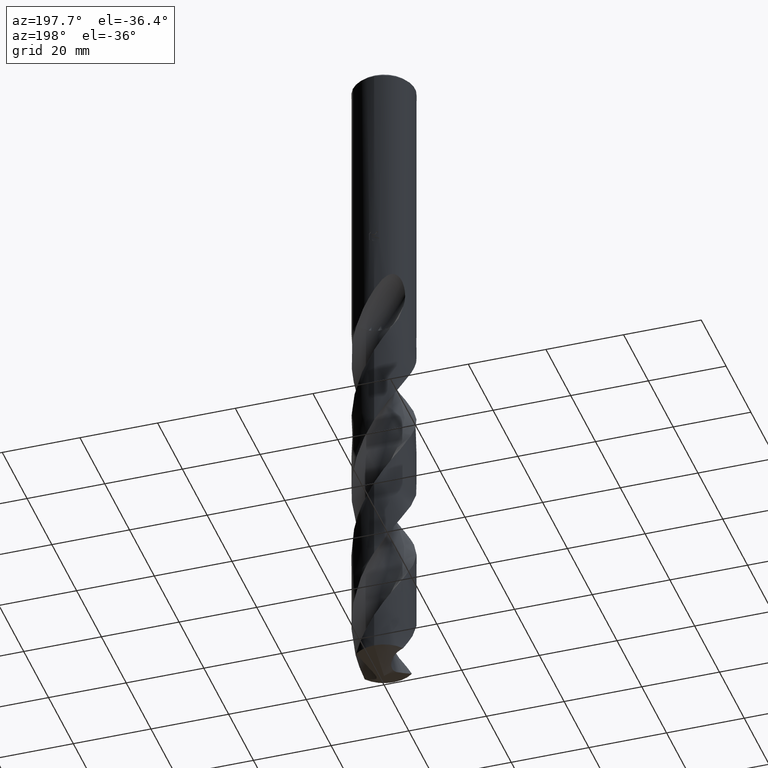
[diagram: clean part render]
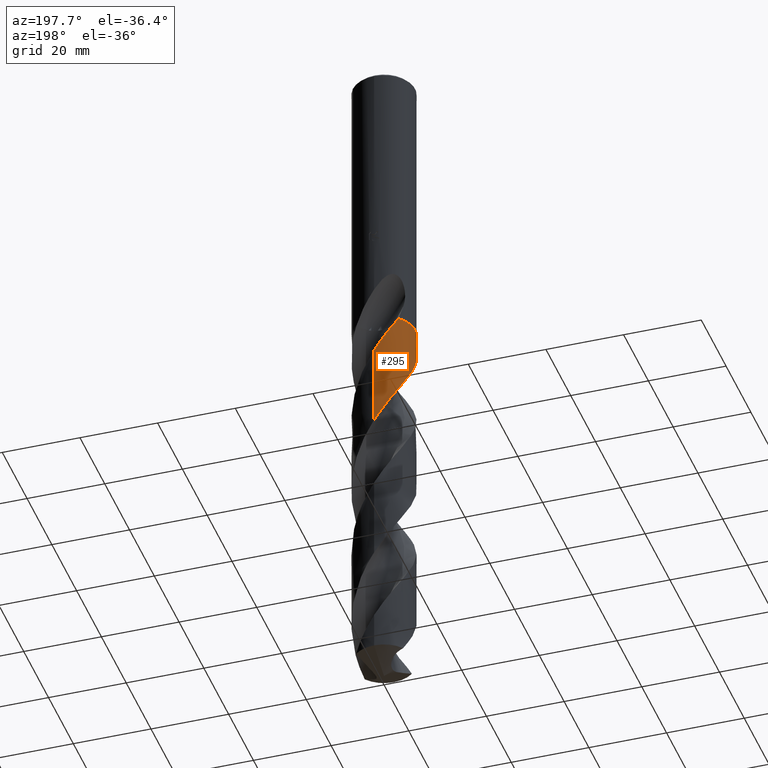
[diagram: same view with one face highlighted and labeled with its STEP entity id]
A machine part, auxiliary view. The second image highlights one B-rep face of the part: STEP entity #295.
In plain terms, the highlighted conical surface has half-angle 0 deg.
Its self-contained STEP definition (entity closure, byte-faithful):
#295=ADVANCED_FACE('',(#776),#777,.T.);
#305=EDGE_CURVE('',#623,#639,#787,.T.);
#317=EDGE_CURVE('',#447,#501,#799,.T.);
#347=VERTEX_POINT('',#831);
#405=VERTEX_POINT('',#893);
#447=VERTEX_POINT('',#941);
#467=EDGE_CURVE('',#639,#347,#962,.T.);
#501=VERTEX_POINT('',#1003);
#521=EDGE_CURVE('',#405,#447,#1024,.T.);
#623=VERTEX_POINT('',#1134);
#639=VERTEX_POINT('',#1152);
#669=EDGE_CURVE('',#501,#623,#1183,.T.);
#673=EDGE_CURVE('',#347,#405,#1187,.T.);
#776=FACE_OUTER_BOUND('',#2792,.T.);
#777=CONICAL_SURFACE('',#2793,7.99995,1.00030470546688E-006);
#787=B_SPLINE_CURVE_WITH_KNOTS('',3,(#2986,#2987,#2988,#2989),.UNSPECIFIED.,.F.,.F.,(4,4),(0.0,0.00532658321904799),.UNSPECIFIED.);
#799=B_SPLINE_CURVE_WITH_KNOTS('',3,(#3093,#3094,#3095,#3096),.UNSPECIFIED.,.F.,.F.,(4,4),(0.0,0.00587111163574686),.UNSPECIFIED.);
#831=CARTESIAN_POINT('',(-2.27333960984461E-012,7.99990991775455,-84.2147334644875));
#893=CARTESIAN_POINT('',(-9.81690854325312E-015,7.99993122110913,-105.511598808039));
#941=CARTESIAN_POINT('',(-5.09767772697037,-6.16539389511924,-74.305));
#962=B_SPLINE_CURVE_WITH_KNOTS('',3,(#4743,#4744,#4745,#4746,#4747,#4748,#4749,#4750,#4751,#4752,#4753,#4754,#4755,#4756,#4757,#4758,#4759,#4760,#4761,#4762,#4763,#4764,#4765,#4766,#4767,#4768,#4769,#4770,#4771,#4772,#4773,#4774,#4775,#4776,#4777,#4778,#4779,#4780,#4781,#4782,#4783,#4784,#4785,#4786,#4787,#4788,#4789,#4790,#4791,#4792,#4793,#4794,#4795,#4796,#4797,#4798,#4799,#4800,#4801,#4802,#4803,#4804,#4805,#4806,#4807,#4808,#4809,#4810,#4811,#4812,#4813,#4814,#4815,#4816,#4817,#4818,#4819,#4820,#4821,#4822,#4823,#4824,#4825,#4826,#4827,#4828,#4829,#4830,#4831,#4832,#4833,#4834,#4835,#4836,#4837,#4838,#4839,#4840,#4841,#4842,#4843,#4844,#4845,#4846,#4847,#4848,#4849,#4850,#4851,#4852,#4853,#4854,#4855,#4856,#4857,#4858,#4859,#4860,#4861,#4862,#4863,#4864,#4865,#4866,#4867,#4868,#4869,#4870,#4871,#4872,#4873,#4874,#4875,#4876,#4877,#4878,#4879,#4880,#4881,#4882,#4883,#4884,#4885,#4886,#4887,#4888),.UNSPECIFIED.,.F.,.F.,(4,2,2,2,2,2,2,2,2,2,2,2,2,2,2,2,2,2,2,2,2,2,2,2,2,2,2,2,2,2,2,2,2,2,2,2,2,2,2,2,2,2,2,2,2,2,2,2,2,2,2,2,2,2,2,2,2,2,2,2,2,2,2,2,2,2,2,2,2,2,2,2,4),(0.0,0.396364840597834,1.68892523961366,2.00397487602575,2.1742425136631,2.30588411094604,2.47757412938631,2.78553549143349,2.98803413635352,3.32603768513197,4.35719738007073,4.93410555683124,5.50924579318835,6.11947961004546,9.23315664726103,9.65617977478687,13.7257575628751,16.4285248284193,17.789595314988,19.1452468522162,21.5964048866649,22.9475144522274,25.4670053949181,26.8121110449903,29.4926416178732,30.742809039997,33.4326304224727,34.1393230377763,36.6636195351885,38.0086047290837,40.6893663213333,41.9262388540052,44.6148559040968,45.3214714577578,47.8135699318468,49.1605013118263,51.8394524356315,53.1019839168209,55.7894982480737,56.4960161626675,58.9435591855801,60.2930219316333,62.8899158650187,64.2292232008232,66.9140679961892,67.4941795347278,69.6317685147496,70.3122926289104,71.6538710153107,74.3369616644711,74.9301852221921,77.0689421989555,77.7493584764256,79.0910215117886,81.7723162622919,82.97638836974,85.6648514263268,86.3710873200704,88.9125110658411,90.2553315254756,92.935813022458,94.1469206618935,96.834032194234,97.5401804927809,99.713448236714,101.634320585559,103.314572297765,106.263971418341,107.371673948155,109.308051229289,110.762401101517,112.94674578634,115.130519179893),.UNSPECIFIED.);
#1003=CARTESIAN_POINT('',(-5.09530569940748,-6.16735436306246,-74.3));
#1024=B_SPLINE_CURVE_WITH_KNOTS('',3,(#5427,#5428,#5429,#5430,#5431,#5432,#5433,#5434,#5435,#5436,#5437,#5438,#5439,#5440,#5441,#5442,#5443,#5444,#5445,#5446,#5447,#5448,#5449,#5450,#5451,#5452,#5453,#5454,#5455,#5456,#5457,#5458,#5459,#5460,#5461,#5462,#5463,#5464,#5465,#5466,#5467,#5468,#5469,#5470,#5471,#5472,#5473,#5474,#5475,#5476,#5477,#5478,#5479,#5480,#5481,#5482,#5483,#5484,#5485,#5486,#5487,#5488,#5489,#5490,#5491,#5492,#5493,#5494,#5495,#5496,#5497,#5498,#5499,#5500,#5501,#5502,#5503,#5504,#5505,#5506,#5507,#5508,#5509,#5510,#5511,#5512,#5513,#5514,#5515,#5516,#5517,#5518,#5519,#5520,#5521,#5522,#5523,#5524,#5525,#5526,#5527,#5528,#5529,#5530,#5531,#5532,#5533,#5534,#5535,#5536,#5537,#5538,#5539,#5540,#5541,#5542,#5543,#5544,#5545,#5546,#5547,#5548,#5549,#5550,#5551,#5552,#5553,#5554,#5555,#5556,#5557,#5558,#5559,#5560,#5561,#5562,#5563,#5564,#5565,#5566,#5567,#5568,#5569,#5570,#5571,#5572,#5573,#5574,#5575,#5576,#5577,#5578,#5579,#5580,#5581,#5582,#5583,#5584,#5585,#5586,#5587,#5588),.UNSPECIFIED.,.F.,.F.,(4,2,2,2,2,2,2,2,2,2,2,2,2,2,2,2,2,2,2,2,2,2,2,2,2,2,2,2,2,2,2,2,2,2,2,2,2,2,2,2,2,2,2,2,2,2,2,2,2,2,2,2,2,2,2,2,2,2,2,2,2,2,2,2,2,2,2,2,2,2,2,2,2,2,2,2,2,2,2,2,4),(0.0,1.7928804095526,4.33577764154734,5.72819779734041,6.59756473720077,7.4990126416963,10.1356116777386,11.5219695780007,13.473585330596,16.2558233366235,17.6007947104445,18.9903484067911,22.1699242170683,22.5269562469336,24.3515203869435,25.4083810572719,26.7967607906734,28.7041226993901,30.5923968297187,32.5006477971172,34.4106013057577,36.3197873514657,37.2441278402441,38.182219475856,40.0905263295087,41.0466339770779,41.9974069286061,43.9054839664657,44.861462837001,45.8121741369763,47.7200681623169,48.6759527023367,49.6265864341083,51.5342260045914,52.4901038791614,53.4409043790239,55.3485068306283,56.3044163280776,57.2553822808476,60.5527032781388,60.6877681858279,63.4633790788872,64.8533225431071,67.974259484123,68.816009295985,70.6247352143017,71.6005611863002,72.6306931779227,74.2975409417892,75.4152108851354,76.5156138141808,78.1888051235842,79.2069193847389,80.3129897371733,81.9424534570058,83.0843643830351,84.0727421447228,85.7562186538742,86.895566636456,87.9093193007685,89.7598799733423,91.8051686815779,93.4524780534719,94.3559810912063,95.5143583292648,98.6361679856924,98.8824414295482,102.410273974125,102.850976694151,106.285672529917,107.403737737634,109.387619307382,113.445089093407,115.345089885514,118.600579246559,119.708191596565,120.193358442622,120.714649516391,121.58281716352,122.683654857767,125.610061957247),.UNSPECIFIED.);
#1134=CARTESIAN_POINT('',(-5.56186814983096,5.75013240664038,-74.3));
#1152=CARTESIAN_POINT('',(-5.5605480230186,5.75140902507614,-74.305));
#1183=CIRCLE('',#6807,7.9999);
#1187=LINE('',#6826,#6827);
#2792=EDGE_LOOP('',(#7361,#7362,#7363,#7364,#7365,#7366));
#2793=AXIS2_PLACEMENT_3D('',#7367,#7368,#7369);
#2986=CARTESIAN_POINT('',(-5.56186814983096,5.75013240664038,-74.3));
#2987=CARTESIAN_POINT('',(-5.56142820671915,5.75055794795765,-74.3016666923532));
#2988=CARTESIAN_POINT('',(-5.5609881644573,5.75098348744994,-74.3033333590533));
#2989=CARTESIAN_POINT('',(-5.5605480230186,5.75140902507614,-74.305));
#3093=CARTESIAN_POINT('',(-5.09767772697038,-6.16539389511923,-74.305));
#3094=CARTESIAN_POINT('',(-5.09688728081379,-6.16604745051203,-74.3033332502075));
#3095=CARTESIAN_POINT('',(-5.09609660493614,-6.16670093991308,-74.3016665836905));
#3096=CARTESIAN_POINT('',(-5.09530569940748,-6.16735436306246,-74.3));
#4743=CARTESIAN_POINT('',(-5.5605480230186,5.75140902507614,-74.305));
#4744=CARTESIAN_POINT('',(-5.51284781691195,5.79752645471941,-74.4192540755638));
#4745=CARTESIAN_POINT('',(-5.46442224984532,5.84319943961172,-74.5335302035352));
#4746=CARTESIAN_POINT('',(-5.25433974515089,6.03639263982219,-75.0199796951176));
#4747=CARTESIAN_POINT('',(-5.08874975585932,6.17699683264633,-75.3798626269448));
#4748=CARTESIAN_POINT('',(-4.86425763592033,6.35141922645094,-75.8356996323304));
#4749=CARTESIAN_POINT('',(-4.819737944388,6.38527475477279,-75.9247459392319));
#4750=CARTESIAN_POINT('',(-4.75002024882717,6.43713174651625,-76.0622744010234));
#4751=CARTESIAN_POINT('',(-4.7254152810813,6.45521618866054,-76.110454938026));
#4752=CARTESIAN_POINT('',(-4.68150528985642,6.48710246957077,-76.1958665082131));
#4753=CARTESIAN_POINT('',(-4.66227706741479,6.50093578213317,-76.2330769951563));
#4754=CARTESIAN_POINT('',(-4.61777154842537,6.53265452482587,-76.3188043609946));
#4755=CARTESIAN_POINT('',(-4.59245340434331,6.55047827945164,-76.3672787302629));
#4756=CARTESIAN_POINT('',(-4.5213531335843,6.59991610335669,-76.5027086077611));
#4757=CARTESIAN_POINT('',(-4.47536015287081,6.63119005043218,-76.5895117693253));
#4758=CARTESIAN_POINT('',(-4.39858919825866,6.68222937906475,-76.7335398647644));
#4759=CARTESIAN_POINT('',(-4.36787769453758,6.70234761748191,-76.7909655502494));
#4760=CARTESIAN_POINT('',(-4.2845780299867,6.75608438753336,-76.946612929858));
#4761=CARTESIAN_POINT('',(-4.23226538227756,6.78897386723107,-77.0441213643777));
#4762=CARTESIAN_POINT('',(-4.01956433510736,6.9193099110861,-77.439444687338));
#4763=CARTESIAN_POINT('',(-3.85718774900729,7.01105409192589,-77.7387368865781));
#4764=CARTESIAN_POINT('',(-3.60090061359212,7.14441882970971,-78.2048274177453));
#4765=CARTESIAN_POINT('',(-3.50810084628045,7.19043850583891,-78.3723029751783));
#4766=CARTESIAN_POINT('',(-3.32118977973493,7.27865479978392,-78.7064923299173));
#4767=CARTESIAN_POINT('',(-3.22695756759466,7.32092207501798,-78.8734327544639));
#4768=CARTESIAN_POINT('',(-3.03094605101573,7.40431428632354,-79.2171312306996));
#4769=CARTESIAN_POINT('',(-2.9290898249008,7.4451982896158,-79.3938164681144));
#4770=CARTESIAN_POINT('',(-2.30206640760382,7.6819953993218,-80.4723294329752));
#4771=CARTESIAN_POINT('',(-1.75848784573006,7.82434292216551,-81.3674522644345));
#4772=CARTESIAN_POINT('',(-1.12914716739342,7.92018648532981,-82.3919912871057));
#4773=CARTESIAN_POINT('',(-1.05372800219391,7.93057261521654,-82.5145793211223));
#4774=CARTESIAN_POINT('',(-0.251453887077054,8.02941336574412,-83.8160797957793));
#4775=CARTESIAN_POINT('',(0.484513294940825,8.01879677072578,-84.987768530346));
#4776=CARTESIAN_POINT('',(1.69030951988603,7.83443947891522,-86.94879013342));
#4777=CARTESIAN_POINT('',(2.16370772117057,7.71710817078398,-87.729768567483));
#4778=CARTESIAN_POINT('',(2.8548870582855,7.47718523190501,-88.9067021501081));
#4779=CARTESIAN_POINT('',(3.08260943591562,7.38622039649796,-89.3006724876664));
#4780=CARTESIAN_POINT('',(3.52817830041771,7.18402572376853,-90.087347497629));
#4781=CARTESIAN_POINT('',(3.74576750146053,7.07301126238282,-90.4794754689064));
#4782=CARTESIAN_POINT('',(4.34155015219171,6.73383078183534,-91.5818548578628));
#4783=CARTESIAN_POINT('',(4.7064709154868,6.48403708787201,-92.2908627550868));
#4784=CARTESIAN_POINT('',(5.23769965986219,6.05181218271989,-93.3919069104959));
#4785=CARTESIAN_POINT('',(5.41933805387508,5.88971015398983,-93.782779642125));
#4786=CARTESIAN_POINT('',(5.91767692601938,5.40237750393066,-94.9037281360042));
#4787=CARTESIAN_POINT('',(6.21454043297051,5.05808293709141,-95.6324233099367));
#4788=CARTESIAN_POINT('',(6.62269610265199,4.49414775986641,-96.7515454409717));
#4789=CARTESIAN_POINT('',(6.75574457961804,4.29154487294899,-97.1407082483713));
#4790=CARTESIAN_POINT('',(7.12576972712556,3.66813447027649,-98.3066282484597));
#4791=CARTESIAN_POINT('',(7.33412488619721,3.23149917150013,-99.0816685590586));
#4792=CARTESIAN_POINT('',(7.58007502379185,2.56748863230545,-100.219975098534));
#4793=CARTESIAN_POINT('',(7.64933188254764,2.35313109601115,-100.581810630839));
#4794=CARTESIAN_POINT('',(7.838790273572,1.66938095555622,-101.723000651023));
#4795=CARTESIAN_POINT('',(7.92549850370805,1.19169971790715,-102.50059183433));
#4796=CARTESIAN_POINT('',(7.97973122963073,0.582207500900456,-103.484220058905));
#4797=CARTESIAN_POINT('',(7.98798454219506,0.455163327214605,-103.688828188753));
#4798=CARTESIAN_POINT('',(8.01184386599806,-0.126272173612198,-104.62465713406));
#4799=CARTESIAN_POINT('',(7.99172834506315,-0.581368319932925,-105.354836133762));
#4800=CARTESIAN_POINT('',(7.90177679477969,-1.27261598888001,-106.475463897219));
#4801=CARTESIAN_POINT('',(7.85961390691713,-1.51131466971998,-106.864648815277));
#4802=CARTESIAN_POINT('',(7.70121255913486,-2.21887066111843,-108.030752584783));
#4803=CARTESIAN_POINT('',(7.55327268050854,-2.67960978240556,-108.805945009307));
#4804=CARTESIAN_POINT('',(7.27761742248002,-3.32940182763691,-109.940609924733));
#4805=CARTESIAN_POINT('',(7.18207127584831,-3.53078647194003,-110.298644253545));
#4806=CARTESIAN_POINT('',(6.85261855312981,-4.15633175722748,-111.435780831139));
#4807=CARTESIAN_POINT('',(6.58848835379117,-4.56349646436741,-112.213140264491));
#4808=CARTESIAN_POINT('',(6.21040211551231,-5.04441647812168,-113.196529122117));
#4809=CARTESIAN_POINT('',(6.12934950826698,-5.14259675986409,-113.401139527392));
#4810=CARTESIAN_POINT('',(5.75203196278143,-5.57805373141808,-114.327744517282));
#4811=CARTESIAN_POINT('',(5.42998652363585,-5.89202157045813,-115.048752348992));
#4812=CARTESIAN_POINT('',(4.89586935633983,-6.33154248635668,-116.160773564614));
#4813=CARTESIAN_POINT('',(4.70158082386449,-6.47711995758954,-116.550563945853));
#4814=CARTESIAN_POINT('',(4.10205013375241,-6.8851402141528,-117.716853750828));
#4815=CARTESIAN_POINT('',(3.67927784198388,-7.12004606907321,-118.491648111209));
#4816=CARTESIAN_POINT('',(3.02981101929043,-7.40750486915383,-119.633370876175));
#4817=CARTESIAN_POINT('',(2.81798285739872,-7.49064911620384,-119.998859929676));
#4818=CARTESIAN_POINT('',(2.14517492324367,-7.72215842684653,-121.1432594373));
#4819=CARTESIAN_POINT('',(1.67396235787786,-7.83782848966806,-121.920415608221));
#4820=CARTESIAN_POINT('',(1.06921276398937,-7.92919739893272,-122.903590275929));
#4821=CARTESIAN_POINT('',(0.942909303025033,-7.94520637705299,-123.108196254108));
#4822=CARTESIAN_POINT('',(0.377650746124789,-8.00318713921845,-124.021990212494));
#4823=CARTESIAN_POINT('',(-0.0640191179833295,-8.01184307474885,-124.73026421057));
#4824=CARTESIAN_POINT('',(-0.746876060367556,-7.96872220036742,-125.830273507539));
#4825=CARTESIAN_POINT('',(-0.988708395656078,-7.94234191055583,-126.220838304482));
#4826=CARTESIAN_POINT('',(-1.69125320654042,-7.83312240442534,-127.364238260098));
#4827=CARTESIAN_POINT('',(-2.14644652378052,-7.7208197569978,-128.115547076463));
#4828=CARTESIAN_POINT('',(-2.81763587876129,-7.4912258936736,-129.255908026719));
#4829=CARTESIAN_POINT('',(-3.0423171627897,-7.40282465980418,-129.643610065084));
#4830=CARTESIAN_POINT('',(-3.70427756060251,-7.10715135160559,-130.809632708372));
#4831=CARTESIAN_POINT('',(-4.12721615183981,-6.87019294019473,-131.586163031647));
#4832=CARTESIAN_POINT('',(-4.61241959367099,-6.53726615968028,-132.532080931517));
#4833=CARTESIAN_POINT('',(-4.69745188559768,-6.47643485346732,-132.700100029729));
#4834=CARTESIAN_POINT('',(-5.09009512335951,-6.1837411779182,-133.487553195692));
#4835=CARTESIAN_POINT('',(-5.38190294401509,-5.9315137803173,-134.106533039184));
#4836=CARTESIAN_POINT('',(-5.74114802016435,-5.5725782440052,-134.923113861064));
#4837=CARTESIAN_POINT('',(-5.82590173640787,-5.48391154391696,-135.120267135915));
#4838=CARTESIAN_POINT('',(-6.07160031572854,-5.2147403491905,-135.706157979092));
#4839=CARTESIAN_POINT('',(-6.22640303021664,-5.0288889746975,-136.09454536603));
#4840=CARTESIAN_POINT('',(-6.66479425010949,-4.45125080874031,-137.260838626565));
#4841=CARTESIAN_POINT('',(-6.92160595053328,-4.0403812796144,-138.036972380186));
#4842=CARTESIAN_POINT('',(-7.18800169415255,-3.51333180751955,-138.986280050313));
#4843=CARTESIAN_POINT('',(-7.23431356733813,-3.41695412858477,-139.158112487486));
#4844=CARTESIAN_POINT('',(-7.43862708247625,-2.96898158420285,-139.949772744019));
#4845=CARTESIAN_POINT('',(-7.57302385588722,-2.60717182071866,-140.569144472082));
#4846=CARTESIAN_POINT('',(-7.71510334331295,-2.11936109460925,-141.386105274527));
#4847=CARTESIAN_POINT('',(-7.74668581330064,-2.00084429573796,-141.583244913852));
#4848=CARTESIAN_POINT('',(-7.83241505896232,-1.64658612925978,-142.169181614819));
#4849=CARTESIAN_POINT('',(-7.87859975055856,-1.40911628867153,-142.557620945793));
#4850=CARTESIAN_POINT('',(-7.98461769210126,-0.691981743686248,-143.72352701911));
#4851=CARTESIAN_POINT('',(-8.01184561559109,-0.208497835186541,-144.499242268432));
#4852=CARTESIAN_POINT('',(-7.98780941590454,0.491480688406311,-145.625139636365));
#4853=CARTESIAN_POINT('',(-7.97153722714006,0.707966862421704,-145.973883876612));
#4854=CARTESIAN_POINT('',(-7.8905690739034,1.40469848026374,-147.102052729351));
#4855=CARTESIAN_POINT('',(-7.79103843679772,1.87994325252662,-147.879743425334));
#4856=CARTESIAN_POINT('',(-7.61178286628669,2.46506873978296,-148.863476802363));
#4857=CARTESIAN_POINT('',(-7.57159605515579,2.58587120614342,-149.068086583621));
#4858=CARTESIAN_POINT('',(-7.37364392898231,3.13668143258036,-150.009348377209));
#4859=CARTESIAN_POINT('',(-7.18198169341365,3.55368327473293,-150.744925909432));
#4860=CARTESIAN_POINT('',(-6.83606775177611,4.16250157936139,-151.87060447184));
#4861=CARTESIAN_POINT('',(-6.70701040711841,4.36740501949888,-152.259420673414));
#4862=CARTESIAN_POINT('',(-6.29315325945809,4.96278743162202,-153.425564636872));
#4863=CARTESIAN_POINT('',(-5.98200707634628,5.3337424730955,-154.201145403197));
#4864=CARTESIAN_POINT('',(-5.4843577454314,5.82830960428879,-155.328982821968));
#4865=CARTESIAN_POINT('',(-5.32327869893231,5.97578835393202,-155.67979691573));
#4866=CARTESIAN_POINT('',(-4.78614648365038,6.42861117201336,-156.809752692732));
#4867=CARTESIAN_POINT('',(-4.38823318625044,6.7065529639024,-157.587167459305));
#4868=CARTESIAN_POINT('',(-3.85698914160001,7.00996379142026,-158.570610825206));
#4869=CARTESIAN_POINT('',(-3.74496213614753,7.07044629717434,-158.77521730477));
#4870=CARTESIAN_POINT('',(-3.28251625536876,7.30604533677858,-159.60986019928));
#4871=CARTESIAN_POINT('',(-2.92085284004618,7.45800895020338,-160.239278684261));
#4872=CARTESIAN_POINT('',(-2.22124850484263,7.69322875288665,-161.425980161186));
#4873=CARTESIAN_POINT('',(-1.88623532070751,7.78214509955212,-161.981868886912));
#4874=CARTESIAN_POINT('',(-1.249424246747,7.9076212047122,-163.025782358404));
#4875=CARTESIAN_POINT('',(-0.949172947671134,7.94925505478011,-163.512570583937));
#4876=CARTESIAN_POINT('',(-0.117278488256363,8.01678345222706,-164.854531121311));
#4877=CARTESIAN_POINT('',(0.415619417169219,8.0068552022578,-165.707220387097));
#4878=CARTESIAN_POINT('',(1.14177893042831,7.92061139705464,-166.88331144336));
#4879=CARTESIAN_POINT('',(1.33911792231433,7.88964734240412,-167.204289721662));
#4880=CARTESIAN_POINT('',(1.87774918741248,7.78433313126007,-168.086623432143));
#4881=CARTESIAN_POINT('',(2.2155598766015,7.69499825401991,-168.64707377919));
#4882=CARTESIAN_POINT('',(2.7948808486107,7.50048470959911,-169.630047499685));
#4883=CARTESIAN_POINT('',(3.03913812119612,7.40488377973382,-170.051469147777));
#4884=CARTESIAN_POINT('',(3.63746345286898,7.13609526658479,-171.106253253156));
#4885=CARTESIAN_POINT('',(3.98424705065929,6.94843771401531,-171.73837938456));
#4886=CARTESIAN_POINT('',(4.64726439092515,6.52364040080876,-173.004589277817));
#4887=CARTESIAN_POINT('',(4.96267511094691,6.28704652638102,-173.636631483741));
#4888=CARTESIAN_POINT('',(5.25943870811467,6.02812611642998,-174.26953873476));
#5427=CARTESIAN_POINT('',(-6.4524154961979,4.72930589668565,-174.26953873476));
#5428=CARTESIAN_POINT('',(-6.63857041863724,4.47532508064233,-173.761603811942));
#5429=CARTESIAN_POINT('',(-6.80980544239701,4.21025218977331,-173.255241473093));
#5430=CARTESIAN_POINT('',(-7.18541308029793,3.54546828464516,-172.028269945193));
#5431=CARTESIAN_POINT('',(-7.37258425977538,3.13776901615773,-171.308115584889));
#5432=CARTESIAN_POINT('',(-7.60796488647452,2.48575223764849,-170.194302971584));
#5433=CARTESIAN_POINT('',(-7.68059903080731,2.25133275056324,-169.800780377114));
#5434=CARTESIAN_POINT('',(-7.78090613530985,1.86571014241642,-169.160668168505));
#5435=CARTESIAN_POINT('',(-7.8151716707496,1.71650831260108,-168.914711966161));
#5436=CARTESIAN_POINT('',(-7.87617741334314,1.41098859624665,-168.413295720054));
#5437=CARTESIAN_POINT('',(-7.90258241174022,1.25468528917399,-168.157721059347));
#5438=CARTESIAN_POINT('',(-7.98796699428941,0.638240379032378,-167.155957503574));
#5439=CARTESIAN_POINT('',(-8.01154790170841,0.174091680577892,-166.413587700705));
#5440=CARTESIAN_POINT('',(-7.98591180556131,-0.533482804088868,-165.274993551227));
#5441=CARTESIAN_POINT('',(-7.96593922546634,-0.776614192849637,-164.881865259053));
#5442=CARTESIAN_POINT('',(-7.89118765457622,-1.35898453579667,-163.937207532181));
#5443=CARTESIAN_POINT('',(-7.82559376669853,-1.6964588626977,-163.386584570434));
#5444=CARTESIAN_POINT('',(-7.61422557309086,-2.50266314117331,-162.04747268465));
#5445=CARTESIAN_POINT('',(-7.44677153268315,-2.96402014289604,-161.259206662341));
#5446=CARTESIAN_POINT('',(-7.13723194344891,-3.6215722445846,-160.091802655908));
#5447=CARTESIAN_POINT('',(-7.02691849465857,-3.83121626976431,-159.711877243702));
#5448=CARTESIAN_POINT('',(-6.78413567854724,-4.24677156484144,-158.938261058278));
#5449=CARTESIAN_POINT('',(-6.65124198267586,-4.45200647224777,-158.544432725189));
#5450=CARTESIAN_POINT('',(-6.18444008645743,-5.10535595319773,-157.252104696152));
#5451=CARTESIAN_POINT('',(-5.81302670318157,-5.52450393214919,-156.35981391672));
#5452=CARTESIAN_POINT('',(-5.35492386911336,-5.94377136246692,-155.359446214394));
#5453=CARTESIAN_POINT('',(-5.30821441638343,-5.98552312790528,-155.258440086932));
#5454=CARTESIAN_POINT('',(-5.01957781510421,-6.23748373796837,-154.641253703406));
#5455=CARTESIAN_POINT('',(-4.7654977634877,-6.43372468189387,-154.126509564069));
#5456=CARTESIAN_POINT('',(-4.34623572823622,-6.71896518319144,-153.312053440395));
#5457=CARTESIAN_POINT('',(-4.18892146452295,-6.81814712321595,-153.013543255241));
#5458=CARTESIAN_POINT('',(-3.81745336195221,-7.03464960500958,-152.322149114813));
#5459=CARTESIAN_POINT('',(-3.60117142137116,-7.1477784281501,-151.928838475713));
#5460=CARTESIAN_POINT('',(-3.07622765523373,-7.39248290223452,-150.99703575622));
#5461=CARTESIAN_POINT('',(-2.76368576498217,-7.51493397555332,-150.459354546307));
#5462=CARTESIAN_POINT('',(-2.12793208418652,-7.71892723697851,-149.386704411618));
#5463=CARTESIAN_POINT('',(-1.80584643947678,-7.8005457380323,-148.85210380678));
#5464=CARTESIAN_POINT('',(-1.15051572643004,-7.92390253546738,-147.779246106891));
#5465=CARTESIAN_POINT('',(-0.817400012742384,-7.96517380781082,-147.241581589599));
#5466=CARTESIAN_POINT('',(-0.147296197132975,-8.00566200241155,-146.163101272384));
#5467=CARTESIAN_POINT('',(0.188624862929499,-8.00477211108056,-145.622646858779));
#5468=CARTESIAN_POINT('',(0.857619879792826,-7.96092560217964,-144.543945637529));
#5469=CARTESIAN_POINT('',(1.19050165537546,-7.91800321981662,-144.006291222104));
#5470=CARTESIAN_POINT('',(1.67935171628144,-7.82340487249938,-143.206349384892));
#5471=CARTESIAN_POINT('',(1.83773374653844,-7.78771740618551,-142.945509070835));
#5472=CARTESIAN_POINT('',(2.15422483083969,-7.70622496994508,-142.419434578148));
#5473=CARTESIAN_POINT('',(2.31226096677938,-7.66029109340461,-142.15411885295));
#5474=CARTESIAN_POINT('',(2.78759204771857,-7.50606744698631,-141.34992915171));
#5475=CARTESIAN_POINT('',(3.09963964509579,-7.38269706466021,-140.812372901266));
#5476=CARTESIAN_POINT('',(3.55530663647078,-7.16850688636946,-140.003536283418));
#5477=CARTESIAN_POINT('',(3.70500916950668,-7.092286104622,-139.733688430626));
#5478=CARTESIAN_POINT('',(3.99837834105384,-6.9311084035268,-139.194951900722));
#5479=CARTESIAN_POINT('',(4.14202915668886,-6.84623267741558,-138.925991241463));
#5480=CARTESIAN_POINT('',(4.56602610020683,-6.57746809552822,-138.118179143552));
#5481=CARTESIAN_POINT('',(4.83762629905768,-6.38038524204218,-137.580616976167));
#5482=CARTESIAN_POINT('',(5.22576385037023,-6.05962370095862,-136.771775759811));
#5483=CARTESIAN_POINT('',(5.35182440752461,-5.94857475297279,-136.501928804747));
#5484=CARTESIAN_POINT('',(5.59593509182516,-5.71950682441532,-135.963175508299));
#5485=CARTESIAN_POINT('',(5.7139844492586,-5.60157456608332,-135.694193836403));
#5486=CARTESIAN_POINT('',(6.05784868373965,-5.23584686685115,-134.886374729444));
#5487=CARTESIAN_POINT('',(6.27192046455473,-4.97743892556544,-134.348813845286));
#5488=CARTESIAN_POINT('',(6.56812132790559,-4.57027084681092,-133.539972413402));
#5489=CARTESIAN_POINT('',(6.66261401319426,-4.43137522977303,-133.270125705204));
#5490=CARTESIAN_POINT('',(6.84210946114564,-4.14882306227718,-132.731367406547));
#5491=CARTESIAN_POINT('',(6.92712915610661,-4.00525643837296,-132.462376471488));
#5492=CARTESIAN_POINT('',(7.16924412823817,-3.56559551741392,-131.654596960365));
#5493=CARTESIAN_POINT('',(7.31234136697848,-3.26212706672726,-131.117074365165));
#5494=CARTESIAN_POINT('',(7.49802140894909,-2.79413991066404,-130.308274083229));
#5495=CARTESIAN_POINT('',(7.55502449754807,-2.63610860344517,-130.038420302733));
#5496=CARTESIAN_POINT('',(7.65866543681896,-2.31775761134006,-129.499603747541));
#5497=CARTESIAN_POINT('',(7.70533810661433,-2.15752639387577,-129.230559453485));
#5498=CARTESIAN_POINT('',(7.83056224551921,-1.67145785341349,-128.422748628647));
#5499=CARTESIAN_POINT('',(7.8937283744944,-1.34194397562855,-127.885241178914));
#5500=CARTESIAN_POINT('',(7.95724423208301,-0.842472138348684,-127.076459742747));
#5501=CARTESIAN_POINT('',(7.97317367390454,-0.675217602443317,-126.806603842406));
#5502=CARTESIAN_POINT('',(7.99442360776987,-0.341041224471452,-126.267748100017));
#5503=CARTESIAN_POINT('',(7.99979781648315,-0.174202139910114,-125.998664602021));
#5504=CARTESIAN_POINT('',(8.00046958704962,0.571776996287027,-124.798136221882));
#5505=CARTESIAN_POINT('',(7.93812441116224,1.14882621335697,-123.873951082857));
#5506=CARTESIAN_POINT('',(7.80916996503476,1.73683720843976,-122.903786035493));
#5507=CARTESIAN_POINT('',(7.80399149526715,1.75995952935463,-122.86559506514));
#5508=CARTESIAN_POINT('',(7.68996769348383,2.25865868935263,-122.041342886707));
#5509=CARTESIAN_POINT('',(7.53789730630992,2.72359347453147,-121.26013173211));
#5510=CARTESIAN_POINT('',(7.24715416205475,3.39672632106236,-120.081493183006));
#5511=CARTESIAN_POINT('',(7.13995950601905,3.61659498720574,-119.687505930195));
#5512=CARTESIAN_POINT('',(6.76037025179611,4.31245404541852,-118.411544839667));
#5513=CARTESIAN_POINT('',(6.44901628961825,4.76547900083219,-117.53541351545));
#5514=CARTESIAN_POINT('',(5.99806122593229,5.29567708230454,-116.41461553715));
#5515=CARTESIAN_POINT('',(5.89908124131165,5.40572232508155,-116.176070864681));
#5516=CARTESIAN_POINT('',(5.57779279590762,5.74356242837947,-115.425911622284));
#5517=CARTESIAN_POINT('',(5.34486093754853,5.96095413703244,-114.915363323676));
#5518=CARTESIAN_POINT('',(4.96701755089058,6.27354022339508,-114.127669471455));
#5519=CARTESIAN_POINT('',(4.83119675166194,6.37871662975085,-113.851774027962));
#5520=CARTESIAN_POINT('',(4.54545400724742,6.58564319616557,-113.284039692543));
#5521=CARTESIAN_POINT('',(4.39522833951349,6.68683983073988,-112.992074915745));
#5522=CARTESIAN_POINT('',(3.9929601174485,6.93839018795398,-112.228682044829));
#5523=CARTESIAN_POINT('',(3.73583535295753,7.08016441610938,-111.757961498091));
#5524=CARTESIAN_POINT('',(3.29396429963707,7.29297880941475,-110.970209981392));
#5525=CARTESIAN_POINT('',(3.11363448156512,7.37176416102826,-110.654255079447));
#5526=CARTESIAN_POINT('',(2.75062796817447,7.51468412070268,-110.02641314444));
#5527=CARTESIAN_POINT('',(2.56806106240682,7.57901854276836,-109.714393536949));
#5528=CARTESIAN_POINT('',(2.10216911336865,7.72441083754088,-108.92917600985));
#5529=CARTESIAN_POINT('',(1.81633943231751,7.79658483515737,-108.456583943672));
#5530=CARTESIAN_POINT('',(1.35095538503453,7.88707936282855,-107.695032969297));
#5531=CARTESIAN_POINT('',(1.17391401022439,7.91536095893314,-107.407113558114));
#5532=CARTESIAN_POINT('',(0.803112055517552,7.96189660200488,-106.805738554743));
#5533=CARTESIAN_POINT('',(0.609281743921475,7.97907128064231,-106.492075870653));
#5534=CARTESIAN_POINT('',(0.128528089891135,8.00403719453502,-105.717537377207));
#5535=CARTESIAN_POINT('',(-0.158596515193364,8.00350969873823,-105.2571911487));
#5536=CARTESIAN_POINT('',(-0.646131718690613,7.97633224347509,-104.472907546363));
#5537=CARTESIAN_POINT('',(-0.846376660068561,7.95756790228041,-104.150009502682));
#5538=CARTESIAN_POINT('',(-1.21795859012985,7.90858290146348,-103.54681529063));
#5539=CARTESIAN_POINT('',(-1.38948853328896,7.88025671483635,-103.266578807331));
#5540=CARTESIAN_POINT('',(-1.85070996587643,7.78855021468953,-102.509920478264));
#5541=CARTESIAN_POINT('',(-2.13805655199221,7.71463355345075,-102.03428933878));
#5542=CARTESIAN_POINT('',(-2.61218422597889,7.56410190375885,-101.235313240979));
#5543=CARTESIAN_POINT('',(-2.80105789784122,7.49620545410686,-100.9130843691));
#5544=CARTESIAN_POINT('',(-3.15253228259398,7.35473851134738,-100.303326534024));
#5545=CARTESIAN_POINT('',(-3.3156675180102,7.28265112130587,-100.015835244048));
#5546=CARTESIAN_POINT('',(-3.76979279371578,7.063539044225,-99.2045269199096));
#5547=CARTESIAN_POINT('',(-4.05442257369056,6.90411499017673,-98.6818254596943));
#5548=CARTESIAN_POINT('',(-4.63179632274776,6.5326221342898,-97.5788841869769));
#5549=CARTESIAN_POINT('',(-4.92119263994708,6.31744966931993,-96.9987973311361));
#5550=CARTESIAN_POINT('',(-5.41535476954508,5.89548250390279,-95.953378465197));
#5551=CARTESIAN_POINT('',(-5.62552784255972,5.69529599302765,-95.4880572164894));
#5552=CARTESIAN_POINT('',(-5.93358020745162,5.36811781982324,-94.7662381549238));
#5553=CARTESIAN_POINT('',(-6.03915267271517,5.2490609031626,-94.5106878634704));
#5554=CARTESIAN_POINT('',(-6.27170237910802,4.97051516401792,-93.9269874147525));
#5555=CARTESIAN_POINT('',(-6.3962337839431,4.80920219328924,-93.5985247392945));
#5556=CARTESIAN_POINT('',(-6.83324893529458,4.19606735466739,-92.386933538506));
#5557=CARTESIAN_POINT('',(-7.10497456723178,3.71739785167386,-91.5096865113122));
#5558=CARTESIAN_POINT('',(-7.34286503569261,3.17535300242936,-90.556161816121));
#5559=CARTESIAN_POINT('',(-7.35992382041871,3.13561031917719,-90.4864485617044));
#5560=CARTESIAN_POINT('',(-7.6164801888209,2.52426949337948,-89.4183404504035));
#5561=CARTESIAN_POINT('',(-7.78901785514183,1.92707293144636,-88.4298106646708));
#5562=CARTESIAN_POINT('',(-7.9036575414141,1.23967525886109,-87.3069553581908));
#5563=CARTESIAN_POINT('',(-7.91527168442013,1.16321641526116,-87.1822193553655));
#5564=CARTESIAN_POINT('',(-8.00772210734315,0.488817892262135,-86.0854744365566));
#5565=CARTESIAN_POINT('',(-8.02184181819738,-0.116567974055598,-85.1217577571958));
#5566=CARTESIAN_POINT('',(-7.94994544142435,-0.914107629633218,-83.8344554434296));
#5567=CARTESIAN_POINT('',(-7.92507395330155,-1.10920796412005,-83.5184130762292));
#5568=CARTESIAN_POINT('',(-7.83629910003859,-1.64695318019698,-82.6406381128018));
#5569=CARTESIAN_POINT('',(-7.75726715188944,-1.98615558731667,-82.076607329213));
#5570=CARTESIAN_POINT('',(-7.44949427633066,-3.0019470632346,-80.3678871085855));
#5571=CARTESIAN_POINT('',(-7.19821881223729,-3.50710137196628,-79.4893604201565));
#5572=CARTESIAN_POINT('',(-6.96067095971351,-3.94624956937979,-78.6992603611902));
#5573=CARTESIAN_POINT('',(-6.88185627328442,-4.08195480134471,-78.4467794826772));
#5574=CARTESIAN_POINT('',(-6.66123573270044,-4.43805887546277,-77.7550954326048));
#5575=CARTESIAN_POINT('',(-6.51636659662567,-4.64639948950573,-77.3136355272122));
#5576=CARTESIAN_POINT('',(-6.32896804068842,-4.89375203030188,-76.7552527258904));
#5577=CARTESIAN_POINT('',(-6.2927079704529,-4.94043712260033,-76.6458412147882));
#5578=CARTESIAN_POINT('',(-6.21393478224338,-5.03854318087198,-76.4298946632841));
#5579=CARTESIAN_POINT('',(-6.18933947192358,-5.06873532549944,-76.364518208174));
#5580=CARTESIAN_POINT('',(-6.13698203523856,-5.13202615021502,-76.2296398734898));
#5581=CARTESIAN_POINT('',(-6.10914706410849,-5.16514170071457,-76.1602618438746));
#5582=CARTESIAN_POINT('',(-6.03291880602083,-5.25430201086684,-75.9764975291432));
#5583=CARTESIAN_POINT('',(-5.98313445877476,-5.31095531736604,-75.8629499334771));
#5584=CARTESIAN_POINT('',(-5.86806349835555,-5.43814743009969,-75.6133105294979));
#5585=CARTESIAN_POINT('',(-5.80061562045648,-5.51013340226963,-75.4758770143853));
#5586=CARTESIAN_POINT('',(-5.54160318206076,-5.77596594922857,-74.9799059663235));
#5587=CARTESIAN_POINT('',(-5.33187442963924,-5.9717555518514,-74.6368380912663));
#5588=CARTESIAN_POINT('',(-5.09767772697037,-6.16539389511924,-74.305));
#6807=AXIS2_PLACEMENT_3D('',#7816,#7817,#7818);
#6826=CARTESIAN_POINT('',(-9.82072572478521E-016,7.99995,-124.28476936738));
#6827=VECTOR('',#7819,1.0);
#7361=ORIENTED_EDGE('',*,*,#673,.T.);
#7362=ORIENTED_EDGE('',*,*,#521,.T.);
#7363=ORIENTED_EDGE('',*,*,#317,.T.);
#7364=ORIENTED_EDGE('',*,*,#669,.T.);
#7365=ORIENTED_EDGE('',*,*,#305,.T.);
#7366=ORIENTED_EDGE('',*,*,#467,.T.);
#7367=CARTESIAN_POINT('',(0.0,0.0,-124.28476936738));
#7368=DIRECTION('',(0.0,-0.0,-1.0));
#7369=DIRECTION('',(0.0,1.0,0.0));
#7816=CARTESIAN_POINT('',(0.0,0.0,-74.3));
#7817=DIRECTION('',(0.0,0.0,-1.0));
#7818=DIRECTION('',(0.0,1.0,0.0));
#7819=DIRECTION('',(-1.22497949807295E-022,1.00030470546671E-006,-0.9999999999995));